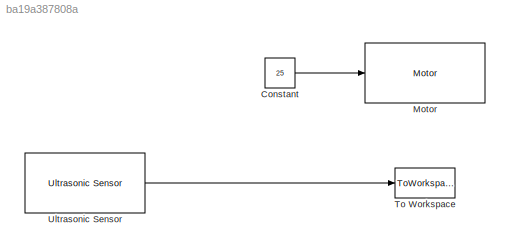
MODEL slx_ba19a387808a
KIND model
CONFIG AbsTol = auto
CONFIG FixedStep = auto
CONFIG MaxStep = auto
CONFIG MinStep = auto
CONFIG RelTol = 1e-3
CONFIG SampleTimeConstraint = Unconstrained
CONFIG Solver = ode45
CONFIG SolverMode = SingleTasking
CONFIG SolverName = ode45
CONFIG StartTime = 0.0
CONFIG StopTime = 10.0
BLOCK [Constant] Constant
  Value = 25
BLOCK [Reference] Motor  REF=legoev3lib/Motor
  Ports = [1]
  SourceBlock = legoev3lib/Motor
  SourceType = LEGO MINDSTORMS EV3 Motor
  sportNumber = A
  sstopAction = Brake
BLOCK [ToWorkspace] To Workspace
  FixptAsFi = on
  MaxDataPoints = inf
  Ports = [1]
  SampleTime = -1
  Save2DSignal = 2-D array (concatenate along first dimension)
  VariableName = simout
BLOCK [Reference] Ultrasonic Sensor  REF=legoev3lib/Ultrasonic Sensor
  PortNumber = 1
  Ports = [0, 1]
  SourceBlock = legoev3lib/Ultrasonic Sensor
  SourceType = LEGO MINDSTORMS EV3 Ultrasonic Sensor
  sampleTime = 0.03
LINE Constant:1 -> Motor:1
LINE Ultrasonic Sensor:1 -> To Workspace:1
